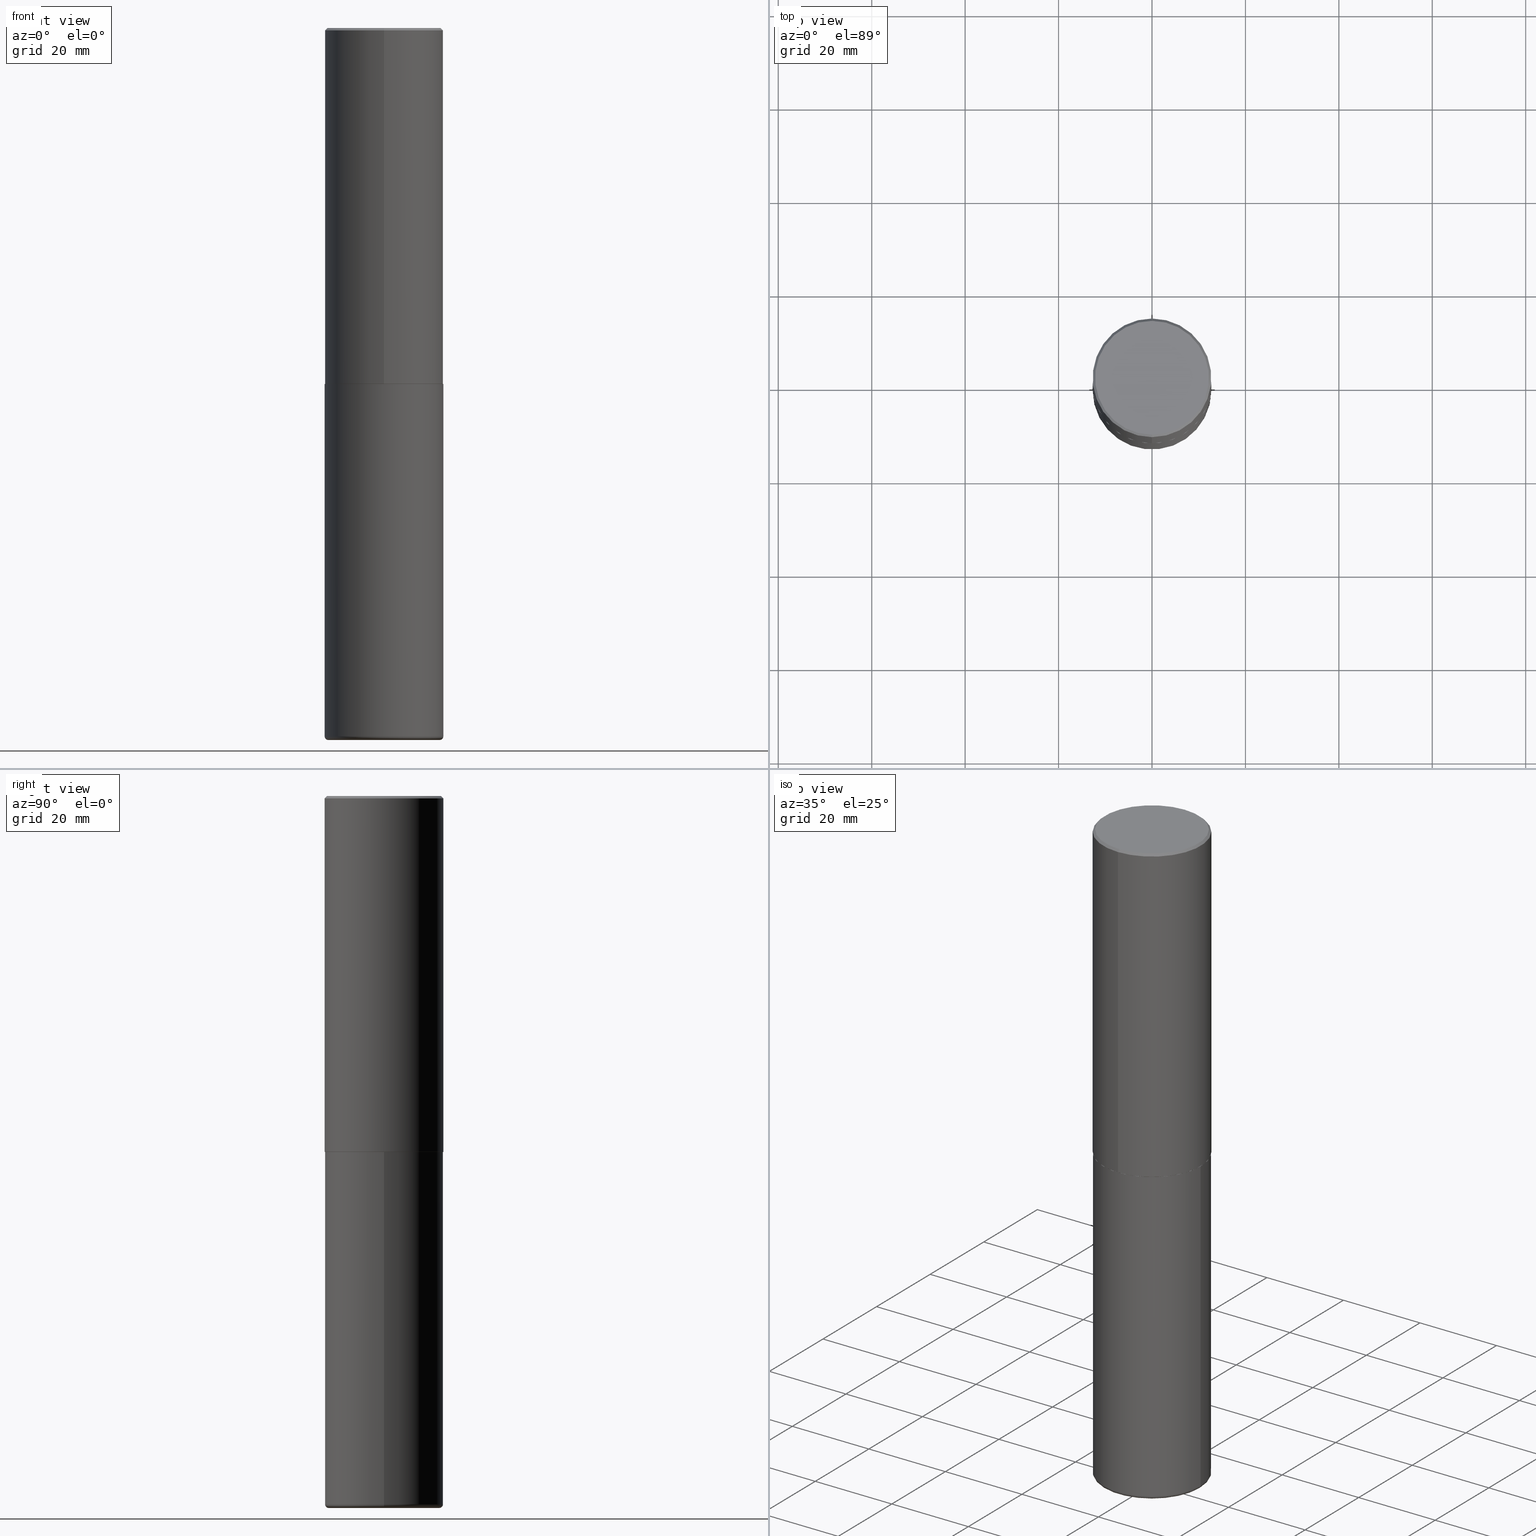
[diagram: canonical four-view strip — front | top / right | iso, engineering-drawing reading convention]
A machine part, canonical four-view strip (front | top / right | iso — engineering-drawing reading convention). The complete STEP part file that produces these views, byte-faithful:
ISO-10303-21;
HEADER;
FILE_DESCRIPTION (( 'STEP AP203' ),
    '1' );
FILE_NAME ('37706.STEP',
    '2024-03-02T08:44:10',
    ( '' ),
    ( '' ),
    'SwSTEP 2.0',
    'SolidWorks 2023',
    '' );
FILE_SCHEMA (( 'CONFIG_CONTROL_DESIGN' ));
ENDSEC;

DATA;
#1 =( CONVERSION_BASED_UNIT ( 'INCH', #369 ) LENGTH_UNIT ( ) NAMED_UNIT ( #200 ) );
#2 = VERTEX_POINT ( 'NONE', #271 ) ;
#3 = PRODUCT_DEFINITION ( 'UNKNOWN', '', #220, #111 ) ;
#4 = CARTESIAN_POINT ( 'NONE',  ( 3.351822085289407153E-15, 0.4799999999999999267, -1.624885063648019971E-15 ) ) ;
#5 = AXIS2_PLACEMENT_3D ( 'NONE', #252, #53, #348 ) ;
#6 = CIRCLE ( 'NONE', #163, 0.4799999999999999267 ) ;
#7 = FACE_OUTER_BOUND ( 'NONE', #229, .T. ) ;
#8 = VERTEX_POINT ( 'NONE', #396 ) ;
#9 = EDGE_CURVE ( 'NONE', #127, #169, #43, .T. ) ;
#10 = ADVANCED_FACE ( 'NONE', ( #120 ), #189, .T. ) ;
#11 = CARTESIAN_POINT ( 'NONE',  ( -0.5000000000000000000, 3.552713678800500929E-15, -2.459467545127452891E-29 ) ) ;
#12 = EDGE_LOOP ( 'NONE', ( #334, #37, #193, #131 ) ) ;
#13 = FACE_OUTER_BOUND ( 'NONE', #93, .T. ) ;
#14 = CARTESIAN_POINT ( 'NONE',  ( 3.491481338843133355E-15, 0.4999999999999999445, -0.02000000000000185310 ) ) ;
#15 = CARTESIAN_POINT ( 'NONE',  ( 1.459944877292526494E-28, -2.084414359289357934E-14, -5.969999999999999751 ) ) ;
#16 = DIRECTION ( 'NONE',  ( 1.000000000000000000, -6.982962677686217012E-15, 0.000000000000000000 ) ) ;
#17 = AXIS2_PLACEMENT_3D ( 'NONE', #15, #361, #104 ) ;
#18 = PERSON_AND_ORGANIZATION ( #270, #389 ) ;
#19 = CARTESIAN_POINT ( 'NONE',  ( 7.334694101099137475E-29, -1.047689615258587837E-14, -3.000000000000000444 ) ) ;
#20 = EDGE_CURVE ( 'NONE', #392, #32, #219, .T. ) ;
#21 = CARTESIAN_POINT ( 'NONE',  ( 0.5000000000000000000, -1.396592535537257129E-14, -3.000000000000000444 ) ) ;
#22 = PERSON_AND_ORGANIZATION ( #270, #389 ) ;
#23 = ADVANCED_BREP_SHAPE_REPRESENTATION ( '37706', ( #358, #359, #418 ), #338 ) ;
#24 = EDGE_CURVE ( 'NONE', #306, #327, #316, .T. ) ;
#25 = APPROVAL_PERSON_ORGANIZATION ( #247, #269, #343 ) ;
#26 = ADVANCED_FACE ( 'NONE', ( #49 ), #110, .T. ) ;
#27 = CC_DESIGN_SECURITY_CLASSIFICATION ( #213, ( #220 ) ) ;
#28 = CC_DESIGN_PERSON_AND_ORGANIZATION_ASSIGNMENT ( #176, #248, ( #220 ) ) ;
#29 = DIRECTION ( 'NONE',  ( -2.444898033699712212E-29, 3.492298717528625990E-15, 1.000000000000000000 ) ) ;
#30 = ADVANCED_FACE ( 'NONE', ( #276 ), #160, .T. ) ;
#31 = CARTESIAN_POINT ( 'NONE',  ( 7.336406418555409790E-29, -1.047444401652943635E-14, -3.000000000000000444 ) ) ;
#32 = VERTEX_POINT ( 'NONE', #21 ) ;
#33 = CIRCLE ( 'NONE', #142, 0.03000000000000077258 ) ;
#34 = LOCAL_TIME ( 3, 44, 10.00000000000000000, #106 ) ;
#35 =( LENGTH_UNIT ( ) NAMED_UNIT ( * ) SI_UNIT ( $, .METRE. ) );
#36 = EDGE_CURVE ( 'NONE', #127, #309, #33, .T. ) ;
#37 = ORIENTED_EDGE ( 'NONE', *, *, #257, .T. ) ;
#38 = LINE ( 'NONE', #155, #92 ) ;
#39 = DIRECTION ( 'NONE',  ( -2.445468806185136877E-29, 3.491481338843145188E-15, 1.000000000000000000 ) ) ;
#40 = VERTEX_POINT ( 'NONE', #171 ) ;
#41 = DIRECTION ( 'NONE',  ( -6.982962677686265922E-15, -1.000000000000000000, 3.284787166730577015E-15 ) ) ;
#42 = APPLICATION_PROTOCOL_DEFINITION ( 'international standard', 'config_control_design', 1994, #294 ) ;
#43 = CIRCLE ( 'NONE', #186, 0.4699999999999999734 ) ;
#44 = CONICAL_SURFACE ( 'NONE', #68, 0.5000000000000000000, 0.7853981633974446153 ) ;
#45 = DIRECTION ( 'NONE',  ( -2.445468806185136597E-29, 3.491481338843145583E-15, 1.000000000000000000 ) ) ;
#46 = ORIENTED_EDGE ( 'NONE', *, *, #87, .F. ) ;
#47 = CARTESIAN_POINT ( 'NONE',  ( 0.4699999999999999734, -2.412613605140612280E-14, -5.969999999999999751 ) ) ;
#48 = ORIENTED_EDGE ( 'NONE', *, *, #61, .T. ) ;
#49 = FACE_OUTER_BOUND ( 'NONE', #228, .T. ) ;
#50 = PERSON_AND_ORGANIZATION_ROLE ( 'design_owner' ) ;
#51 = AXIS2_PLACEMENT_3D ( 'NONE', #310, #158, #204 ) ;
#52 = CALENDAR_DATE ( 2024, 2, 3 ) ;
#53 = DIRECTION ( 'NONE',  ( -2.444898033699712212E-29, 3.492298717528625990E-15, 1.000000000000000000 ) ) ;
#54 = APPROVAL_DATE_TIME ( #405, #331 ) ;
#55 = COORDINATED_UNIVERSAL_TIME_OFFSET ( 5, 0, .BEHIND. ) ;
#56 = DIRECTION ( 'NONE',  ( -6.982962677686265922E-15, -1.000000000000000000, 3.284787166730577015E-15 ) ) ;
#57 = CC_DESIGN_PERSON_AND_ORGANIZATION_ASSIGNMENT ( #18, #349, ( #3 ) ) ;
#58 = DIRECTION ( 'NONE',  ( -6.982962677686265922E-15, -1.000000000000000000, 3.491643216902136408E-15 ) ) ;
#59 = CIRCLE ( 'NONE', #108, 0.4799999999999999267 ) ;
#60 = AXIS2_PLACEMENT_3D ( 'NONE', #19, #353, #56 ) ;
#61 = EDGE_CURVE ( 'NONE', #306, #8, #414, .T. ) ;
#62 = ORIENTED_EDGE ( 'NONE', *, *, #380, .F. ) ;
#63 = AXIS2_PLACEMENT_3D ( 'NONE', #275, #100, #400 ) ;
#64 = ORIENTED_EDGE ( 'NONE', *, *, #9, .F. ) ;
#65 = DIRECTION ( 'NONE',  ( -6.982962677686265922E-15, -1.000000000000000000, 3.284787166730577015E-15 ) ) ;
#66 = EDGE_LOOP ( 'NONE', ( #339, #235 ) ) ;
#67 = ORIENTED_EDGE ( 'NONE', *, *, #206, .F. ) ;
#68 = AXIS2_PLACEMENT_3D ( 'NONE', #199, #134, #239 ) ;
#69 = CARTESIAN_POINT ( 'NONE',  ( 3.552713678800501718E-15, 0.5000000000000001110, -1.746149358764313390E-15 ) ) ;
#70 = ORIENTED_EDGE ( 'NONE', *, *, #221, .F. ) ;
#71 = CARTESIAN_POINT ( 'NONE',  ( 7.336406418555409790E-29, -1.047444401652943635E-14, -3.000000000000000444 ) ) ;
#72 = APPLICATION_CONTEXT ( 'configuration controlled 3d designs of mechanical parts and assemblies' ) ;
#73 = ORIENTED_EDGE ( 'NONE', *, *, #262, .F. ) ;
#74 = CC_DESIGN_PERSON_AND_ORGANIZATION_ASSIGNMENT ( #255, #210, ( #213 ) ) ;
#75 = CARTESIAN_POINT ( 'NONE',  ( -0.5000000000000000000, -1.210658012591100613E-14, -3.000000000000000444 ) ) ;
#76 = ORIENTED_EDGE ( 'NONE', *, *, #372, .F. ) ;
#77 = CARTESIAN_POINT ( 'NONE',  ( -3.484498376165373188E-15, -0.4990000000000104352, -2.999999999999998668 ) ) ;
#78 = AXIS2_PLACEMENT_3D ( 'NONE', #47, #244, #16 ) ;
#79 = DIRECTION ( 'NONE',  ( 5.024295867789263036E-15, 0.7071067811867189912, 0.7071067811863760433 ) ) ;
#80 = EDGE_LOOP ( 'NONE', ( #362, #119, #62, #46 ) ) ;
#81 = CARTESIAN_POINT ( 'NONE',  ( 4.889796067399450837E-31, -6.984597435057287381E-17, -0.02000000000000010797 ) ) ;
#82 = DIRECTION ( 'NONE',  ( 2.438088387897960049E-29, -3.491481338843145188E-15, -1.000000000000000000 ) ) ;
#83 = CC_DESIGN_PERSON_AND_ORGANIZATION_ASSIGNMENT ( #178, #50, ( #159 ) ) ;
#84 = APPROVAL_DATE_TIME ( #292, #269 ) ;
#85 = FACE_OUTER_BOUND ( 'NONE', #80, .T. ) ;
#86 = APPROVAL_DATE_TIME ( #259, #124 ) ;
#87 = EDGE_CURVE ( 'NONE', #136, #32, #112, .T. ) ;
#88 = CARTESIAN_POINT ( 'NONE',  ( 4.889796067399450837E-31, -6.984597435057287381E-17, -0.02000000000000010797 ) ) ;
#89 = DATE_TIME_ROLE ( 'classification_date' ) ;
#90 = VECTOR ( 'NONE', #222, 39.37007874015748143 ) ;
#91 = EDGE_CURVE ( 'NONE', #129, #8, #409, .T. ) ;
#92 = VECTOR ( 'NONE', #149, 39.37007874015748143 ) ;
#93 = EDGE_LOOP ( 'NONE', ( #390, #105 ) ) ;
#94 = CIRCLE ( 'NONE', #146, 0.5000000000000002220 ) ;
#95 = ORIENTED_EDGE ( 'NONE', *, *, #36, .T. ) ;
#96 = TOROIDAL_SURFACE ( 'NONE', #17, 0.4699999999999999734, 0.03000000000000077258 ) ;
#97 = CARTESIAN_POINT ( 'NONE',  ( 3.491481338843133355E-15, 0.4999999999999999445, -0.02000000000000185310 ) ) ;
#98 = EDGE_LOOP ( 'NONE', ( #364, #274, #224, #243 ) ) ;
#99 = EDGE_LOOP ( 'NONE', ( #278, #133, #330, #161 ) ) ;
#100 = DIRECTION ( 'NONE',  ( -2.444898033699712212E-29, 3.492298717528625990E-15, 1.000000000000000000 ) ) ;
#101 = DIRECTION ( 'NONE',  ( 4.937700262164529898E-15, 0.7071067811865424657, -0.7071067811865525687 ) ) ;
#102 = EDGE_LOOP ( 'NONE', ( #198, #185, #399, #386 ) ) ;
#103 = CONICAL_SURFACE ( 'NONE', #187, 0.4989999999999999991, 0.7853981633976873100 ) ;
#104 = DIRECTION ( 'NONE',  ( 1.000000000000000000, -6.982962677686268288E-15, 4.883557194083112901E-29 ) ) ;
#105 = ORIENTED_EDGE ( 'NONE', *, *, #20, .T. ) ;
#106 = COORDINATED_UNIVERSAL_TIME_OFFSET ( 5, 0, .BEHIND. ) ;
#107 = DIRECTION ( 'NONE',  ( 1.000000000000000000, -6.982962677686266711E-15, 4.876176775795935793E-29 ) ) ;
#108 = AXIS2_PLACEMENT_3D ( 'NONE', #403, #29, #416 ) ;
#109 = AXIS2_PLACEMENT_3D ( 'NONE', #4, #333, #398 ) ;
#110 = CYLINDRICAL_SURFACE ( 'NONE', #303, 0.5000000000000001110 ) ;
#111 = DESIGN_CONTEXT ( 'detailed design', #72, 'design' ) ;
#112 = LINE ( 'NONE', #254, #122 ) ;
#113 = SECURITY_CLASSIFICATION_LEVEL ( 'unclassified' ) ;
#114 = CYLINDRICAL_SURFACE ( 'NONE', #231, 0.5000000000000000000 ) ;
#115 = DIRECTION ( 'NONE',  ( 1.000000000000000000, -6.982962677686266711E-15, 0.000000000000000000 ) ) ;
#116 = AXIS2_PLACEMENT_3D ( 'NONE', #179, #323, #138 ) ;
#117 = DIRECTION ( 'NONE',  ( -6.982962677686266711E-15, -1.000000000000000000, 3.278217592397114284E-15 ) ) ;
#118 = APPROVAL_PERSON_ORGANIZATION ( #22, #331, #284 ) ;
#119 = ORIENTED_EDGE ( 'NONE', *, *, #413, .T. ) ;
#120 = FACE_OUTER_BOUND ( 'NONE', #404, .T. ) ;
#121 = CARTESIAN_POINT ( 'NONE',  ( 7.332249203065438921E-29, -1.047340385386834930E-14, -2.999000000000000554 ) ) ;
#122 = VECTOR ( 'NONE', #381, 39.37007874015748143 ) ;
#123 = LOCAL_TIME ( 3, 44, 10.00000000000000000, #317 ) ;
#124 = APPROVAL ( #382, 'UNSPECIFIED' ) ;
#125 = ORIENTED_EDGE ( 'NONE', *, *, #140, .F. ) ;
#126 = CARTESIAN_POINT ( 'NONE',  ( 3.552713678800539584E-15, 0.4999999999999898970, -2.999000000000001886 ) ) ;
#127 = VERTEX_POINT ( 'NONE', #313 ) ;
#128 = CARTESIAN_POINT ( 'NONE',  ( 1.459944877292526494E-28, -2.084414359289357934E-14, -5.969999999999999751 ) ) ;
#129 = VERTEX_POINT ( 'NONE', #14 ) ;
#130 = CIRCLE ( 'NONE', #377, 0.5000000000000000000 ) ;
#131 = ORIENTED_EDGE ( 'NONE', *, *, #154, .F. ) ;
#132 = LINE ( 'NONE', #97, #304 ) ;
#133 = ORIENTED_EDGE ( 'NONE', *, *, #391, .T. ) ;
#134 = DIRECTION ( 'NONE',  ( 2.444898033699712212E-29, -3.492298717528625990E-15, -1.000000000000000000 ) ) ;
#135 = CARTESIAN_POINT ( 'NONE',  ( 0.5000000000000003331, -2.433562493173670954E-14, -5.969999999999999751 ) ) ;
#136 = VERTEX_POINT ( 'NONE', #135 ) ;
#137 = LOCAL_TIME ( 3, 44, 10.00000000000000000, #55 ) ;
#138 = DIRECTION ( 'NONE',  ( 6.982962677686265922E-15, 1.000000000000000000, -3.491643216902136408E-15 ) ) ;
#139 = COORDINATED_UNIVERSAL_TIME_OFFSET ( 5, 0, .BEHIND. ) ;
#140 = EDGE_CURVE ( 'NONE', #2, #40, #59, .T. ) ;
#141 = PERSON_AND_ORGANIZATION_ROLE ( 'creator' ) ;
#142 = AXIS2_PLACEMENT_3D ( 'NONE', #373, #283, #289 ) ;
#143 = AXIS2_PLACEMENT_3D ( 'NONE', #412, #352, #321 ) ;
#144 = DIRECTION ( 'NONE',  ( -2.444898033699712212E-29, 3.492298717528625990E-15, 1.000000000000000000 ) ) ;
#145 = EDGE_CURVE ( 'NONE', #208, #306, #326, .T. ) ;
#146 = AXIS2_PLACEMENT_3D ( 'NONE', #121, #144, #117 ) ;
#147 = AXIS2_PLACEMENT_3D ( 'NONE', #395, #337, #196 ) ;
#148 = DIRECTION ( 'NONE',  ( 1.000000000000000000, -6.982962677686262766E-15, 0.000000000000000000 ) ) ;
#149 = DIRECTION ( 'NONE',  ( -4.851104656540946131E-15, -0.7071067811865473507, -0.7071067811865476838 ) ) ;
#150 = FACE_OUTER_BOUND ( 'NONE', #12, .T. ) ;
#151 = CARTESIAN_POINT ( 'NONE',  ( -0.5000000000000003331, -1.729142991409307210E-14, -5.969999999999999751 ) ) ;
#152 = CARTESIAN_POINT ( 'NONE',  ( -2.514251026725007597E-45, 3.591362713352002573E-31, 1.028366415314403880E-16 ) ) ;
#153 = ORIENTED_EDGE ( 'NONE', *, *, #91, .F. ) ;
#154 = EDGE_CURVE ( 'NONE', #327, #306, #94, .T. ) ;
#155 = CARTESIAN_POINT ( 'NONE',  ( -3.430248998885764992E-15, -0.5000000000000001110, -0.01999999999999835937 ) ) ;
#156 =( NAMED_UNIT ( * ) SI_UNIT ( $, .STERADIAN. ) SOLID_ANGLE_UNIT ( ) );
#157 = ORIENTED_EDGE ( 'NONE', *, *, #354, .F. ) ;
#158 = DIRECTION ( 'NONE',  ( -2.444898033699711371E-29, 3.492298717528626385E-15, 1.000000000000000000 ) ) ;
#159 = PRODUCT ( '37706', '37706', '', ( #286 ) ) ;
#160 = CONICAL_SURFACE ( 'NONE', #116, 0.5000000000000000000, 0.7853981633974446153 ) ;
#161 = ORIENTED_EDGE ( 'NONE', *, *, #145, .F. ) ;
#162 = DIRECTION ( 'NONE',  ( -6.982962677686265922E-15, -1.000000000000000000, 3.492298717528625990E-15 ) ) ;
#163 = AXIS2_PLACEMENT_3D ( 'NONE', #152, #245, #241 ) ;
#164 = DIRECTION ( 'NONE',  ( -2.444898033699711931E-29, 3.492298717528626385E-15, 1.000000000000000000 ) ) ;
#165 = ORIENTED_EDGE ( 'NONE', *, *, #258, .F. ) ;
#166 = CARTESIAN_POINT ( 'NONE',  ( 3.549160965121773789E-15, 0.4989999999999895630, -3.000000000000001776 ) ) ;
#167 = ADVANCED_FACE ( 'NONE', ( #150 ), #266, .T. ) ;
#168 = EDGE_CURVE ( 'NONE', #40, #8, #38, .T. ) ;
#169 = VERTEX_POINT ( 'NONE', #170 ) ;
#170 = CARTESIAN_POINT ( 'NONE',  ( 0.4699999999999999734, -2.423088049157142248E-14, -6.000000000000001776 ) ) ;
#171 = CARTESIAN_POINT ( 'NONE',  ( -3.361644018908049661E-15, -0.4799999999999999267, 1.779140025945180744E-15 ) ) ;
#172 = PERSON_AND_ORGANIZATION ( #270, #389 ) ;
#173 = CARTESIAN_POINT ( 'NONE',  ( 1.459944877292526494E-28, -2.084414359289357934E-14, -5.969999999999999751 ) ) ;
#174 = LOCAL_TIME ( 3, 44, 10.00000000000000000, #139 ) ;
#175 = CARTESIAN_POINT ( 'NONE',  ( 0.000000000000000000, 0.000000000000000000, 0.000000000000000000 ) ) ;
#176 = PERSON_AND_ORGANIZATION ( #270, #389 ) ;
#177 = CC_DESIGN_PERSON_AND_ORGANIZATION_ASSIGNMENT ( #415, #141, ( #220 ) ) ;
#178 = PERSON_AND_ORGANIZATION ( #270, #389 ) ;
#179 = CARTESIAN_POINT ( 'NONE',  ( 4.889796067399450837E-31, -6.984597435057287381E-17, -0.02000000000000010797 ) ) ;
#180 = CALENDAR_DATE ( 2024, 2, 3 ) ;
#181 = CLOSED_SHELL ( 'NONE', ( #240, #26, #218, #30, #197, #167, #251, #406 ) ) ;
#182 = CIRCLE ( 'NONE', #147, 0.5000000000000000000 ) ;
#183 = CARTESIAN_POINT ( 'NONE',  ( 0.000000000000000000, 0.000000000000000000, 0.000000000000000000 ) ) ;
#184 = CYLINDRICAL_SURFACE ( 'NONE', #143, 0.5000000000000000000 ) ;
#185 = ORIENTED_EDGE ( 'NONE', *, *, #312, .T. ) ;
#186 = AXIS2_PLACEMENT_3D ( 'NONE', #217, #293, #148 ) ;
#187 = AXIS2_PLACEMENT_3D ( 'NONE', #279, #365, #41 ) ;
#188 = PRODUCT_RELATED_PRODUCT_CATEGORY ( 'detail', '', ( #159 ) ) ;
#189 = PLANE ( 'NONE',  #242 ) ;
#190 = ORIENTED_EDGE ( 'NONE', *, *, #257, .F. ) ;
#191 = CARTESIAN_POINT ( 'NONE',  ( 1.459944877292526494E-28, -2.084414359289357934E-14, -5.969999999999999751 ) ) ;
#192 = AXIS2_PLACEMENT_3D ( 'NONE', #191, #45, #263 ) ;
#193 = ORIENTED_EDGE ( 'NONE', *, *, #145, .T. ) ;
#194 = FACE_OUTER_BOUND ( 'NONE', #66, .T. ) ;
#195 = ORIENTED_EDGE ( 'NONE', *, *, #168, .F. ) ;
#196 = DIRECTION ( 'NONE',  ( 1.000000000000000000, -6.982962677686266711E-15, 0.000000000000000000 ) ) ;
#197 = ADVANCED_FACE ( 'NONE', ( #363 ), #272, .T. ) ;
#198 = ORIENTED_EDGE ( 'NONE', *, *, #413, .F. ) ;
#199 = CARTESIAN_POINT ( 'NONE',  ( 4.889796067399450837E-31, -6.984597435057287381E-17, -0.02000000000000010797 ) ) ;
#200 = DIMENSIONAL_EXPONENTS ( 1.000000000000000000, 0.000000000000000000, 0.000000000000000000, 0.000000000000000000, 0.000000000000000000, 0.000000000000000000, 0.000000000000000000 ) ;
#201 = DIRECTION ( 'NONE',  ( -2.445468806185136597E-29, 3.491481338843145583E-15, 1.000000000000000000 ) ) ;
#202 = AXIS2_PLACEMENT_3D ( 'NONE', #336, #340, #162 ) ;
#203 = ORIENTED_EDGE ( 'NONE', *, *, #354, .T. ) ;
#204 = DIRECTION ( 'NONE',  ( -6.982962677686265922E-15, -1.000000000000000000, 3.492298717528626385E-15 ) ) ;
#205 = CC_DESIGN_APPROVAL ( #269, ( #213 ) ) ;
#206 = EDGE_CURVE ( 'NONE', #169, #136, #388, .T. ) ;
#207 = LINE ( 'NONE', #69, #250 ) ;
#208 = VERTEX_POINT ( 'NONE', #77 ) ;
#209 = DIRECTION ( 'NONE',  ( -6.982962677686265922E-15, -1.000000000000000000, 3.491643216902136408E-15 ) ) ;
#210 = PERSON_AND_ORGANIZATION_ROLE ( 'classification_officer' ) ;
#211 = DIRECTION ( 'NONE',  ( 1.000000000000000000, -6.982962677686262766E-15, 0.000000000000000000 ) ) ;
#212 = SHAPE_DEFINITION_REPRESENTATION ( #311, #23 ) ;
#213 = SECURITY_CLASSIFICATION ( '', '', #113 ) ;
#214 = DATE_AND_TIME ( #215, #34 ) ;
#215 = CALENDAR_DATE ( 2024, 2, 3 ) ;
#216 = DIRECTION ( 'NONE',  ( -2.444898033699712212E-29, 3.492298717528625990E-15, 1.000000000000000000 ) ) ;
#217 = CARTESIAN_POINT ( 'NONE',  ( 1.467281283711082406E-28, -2.094888803305887902E-14, -6.000000000000001776 ) ) ;
#218 = ADVANCED_FACE ( 'NONE', ( #265 ), #44, .T. ) ;
#219 = CIRCLE ( 'NONE', #345, 0.5000000000000000000 ) ;
#220 = PRODUCT_DEFINITION_FORMATION_WITH_SPECIFIED_SOURCE ( 'ANY', '', #159, .NOT_KNOWN. ) ;
#221 = EDGE_CURVE ( 'NONE', #136, #309, #368, .T. ) ;
#222 = DIRECTION ( 'NONE',  ( -4.937700262165728178E-15, -0.7071067811867141062, 0.7071067811863809283 ) ) ;
#223 = DIRECTION ( 'NONE',  ( 2.438088387897960049E-29, -3.491481338843145188E-15, -1.000000000000000000 ) ) ;
#224 = ORIENTED_EDGE ( 'NONE', *, *, #206, .T. ) ;
#225 = CARTESIAN_POINT ( 'NONE',  ( 4.931676200070994304E-29, -3.489875012836576194E-14, -6.000000000000001776 ) ) ;
#226 = ORIENTED_EDGE ( 'NONE', *, *, #296, .F. ) ;
#227 = CIRCLE ( 'NONE', #328, 0.4699999999999999734 ) ;
#228 = EDGE_LOOP ( 'NONE', ( #301, #370, #73, #355 ) ) ;
#229 = EDGE_LOOP ( 'NONE', ( #394, #95, #70, #67 ) ) ;
#230 = ADVANCED_FACE ( 'NONE', ( #13 ), #236, .F. ) ;
#231 = AXIS2_PLACEMENT_3D ( 'NONE', #285, #408, #107 ) ;
#232 =( NAMED_UNIT ( * ) PLANE_ANGLE_UNIT ( ) SI_UNIT ( $, .RADIAN. ) );
#233 = VERTEX_POINT ( 'NONE', #166 ) ;
#234 = DIRECTION ( 'NONE',  ( 1.000000000000000000, -6.982962677686263555E-15, 0.000000000000000000 ) ) ;
#235 = ORIENTED_EDGE ( 'NONE', *, *, #372, .T. ) ;
#236 = PLANE ( 'NONE',  #356 ) ;
#237 = LINE ( 'NONE', #366, #347 ) ;
#238 = ORIENTED_EDGE ( 'NONE', *, *, #91, .T. ) ;
#239 = DIRECTION ( 'NONE',  ( 6.982962677686265922E-15, 1.000000000000000000, -3.491643216902136408E-15 ) ) ;
#240 = ADVANCED_FACE ( 'NONE', ( #302 ), #103, .T. ) ;
#241 = DIRECTION ( 'NONE',  ( -6.982962677686265922E-15, -1.000000000000000000, 3.492298717528625990E-15 ) ) ;
#242 = AXIS2_PLACEMENT_3D ( 'NONE', #225, #223, #329 ) ;
#243 = ORIENTED_EDGE ( 'NONE', *, *, #312, .F. ) ;
#244 = DIRECTION ( 'NONE',  ( -6.982962677686266711E-15, -1.000000000000000000, 3.491481338843145583E-15 ) ) ;
#245 = DIRECTION ( 'NONE',  ( -2.444898033699712212E-29, 3.492298717528625990E-15, 1.000000000000000000 ) ) ;
#246 = CARTESIAN_POINT ( 'NONE',  ( 1.467281283711082406E-28, -2.094888803305887902E-14, -6.000000000000001776 ) ) ;
#247 = PERSON_AND_ORGANIZATION ( #270, #389 ) ;
#248 = PERSON_AND_ORGANIZATION_ROLE ( 'design_supplier' ) ;
#249 = AXIS2_PLACEMENT_3D ( 'NONE', #261, #387, #65 ) ;
#250 = VECTOR ( 'NONE', #164, 39.37007874015748143 ) ;
#251 = ADVANCED_FACE ( 'NONE', ( #307 ), #397, .F. ) ;
#252 = CARTESIAN_POINT ( 'NONE',  ( 7.332249203065438921E-29, -1.047340385386834930E-14, -2.999000000000000554 ) ) ;
#253 = CALENDAR_DATE ( 2024, 2, 3 ) ;
#254 = CARTESIAN_POINT ( 'NONE',  ( 0.5000000000000000000, -3.491481338843133355E-15, 2.438088387897967896E-29 ) ) ;
#255 = PERSON_AND_ORGANIZATION ( #270, #389 ) ;
#256 = FACE_OUTER_BOUND ( 'NONE', #98, .T. ) ;
#257 = EDGE_CURVE ( 'NONE', #233, #208, #325, .T. ) ;
#258 = EDGE_CURVE ( 'NONE', #169, #127, #227, .T. ) ;
#259 = DATE_AND_TIME ( #52, #123 ) ;
#260 = CC_DESIGN_APPROVAL ( #124, ( #3 ) ) ;
#261 = CARTESIAN_POINT ( 'NONE',  ( 7.334694101099137475E-29, -1.047689615258587837E-14, -3.000000000000000444 ) ) ;
#262 = EDGE_CURVE ( 'NONE', #8, #129, #130, .T. ) ;
#263 = DIRECTION ( 'NONE',  ( 1.000000000000000000, -6.982962677686268288E-15, 4.883557194083112901E-29 ) ) ;
#264 = EDGE_LOOP ( 'NONE', ( #226, #190 ) ) ;
#265 = FACE_OUTER_BOUND ( 'NONE', #357, .T. ) ;
#266 = CONICAL_SURFACE ( 'NONE', #249, 0.4989999999999999991, 0.7853981633976873100 ) ;
#267 = VECTOR ( 'NONE', #39, 39.37007874015748143 ) ;
#268 = ORIENTED_EDGE ( 'NONE', *, *, #154, .T. ) ;
#269 = APPROVAL ( #351, 'UNSPECIFIED' ) ;
#270 = PERSON ( 'UNSPECIFIED', 'UNSPECIFIED', 'UNSPECIFIED', ('UNSPECIFIED'), ('UNSPECIFIED'), ('UNSPECIFIED') ) ;
#271 = CARTESIAN_POINT ( 'NONE',  ( 3.421651712066270057E-15, 0.4799999999999999267, -1.573466742882299844E-15 ) ) ;
#272 = CYLINDRICAL_SURFACE ( 'NONE', #202, 0.5000000000000001110 ) ;
#273 = PLANE ( 'NONE',  #109 ) ;
#274 = ORIENTED_EDGE ( 'NONE', *, *, #9, .T. ) ;
#275 = CARTESIAN_POINT ( 'NONE',  ( 7.334694101099137475E-29, -1.047689615258587837E-14, -3.000000000000000444 ) ) ;
#276 = FACE_OUTER_BOUND ( 'NONE', #335, .T. ) ;
#277 = VECTOR ( 'NONE', #280, 39.37007874015748143 ) ;
#278 = ORIENTED_EDGE ( 'NONE', *, *, #296, .T. ) ;
#279 = CARTESIAN_POINT ( 'NONE',  ( 7.334694101099137475E-29, -1.047689615258587837E-14, -3.000000000000000444 ) ) ;
#280 = DIRECTION ( 'NONE',  ( -2.444898033699711931E-29, 3.492298717528626385E-15, 1.000000000000000000 ) ) ;
#281 = CALENDAR_DATE ( 2024, 2, 3 ) ;
#282 = UNCERTAINTY_MEASURE_WITH_UNIT (LENGTH_MEASURE( 1.000000000000000082E-05 ), #1, 'distance_accuracy_value', 'NONE');
#283 = DIRECTION ( 'NONE',  ( 7.105427357601001859E-15, 1.000000000000000000, -3.491481338843145583E-15 ) ) ;
#284 = APPROVAL_ROLE ( '' ) ;
#285 = CARTESIAN_POINT ( 'NONE',  ( 0.000000000000000000, 0.000000000000000000, 0.000000000000000000 ) ) ;
#286 = MECHANICAL_CONTEXT ( 'NONE', #294, 'mechanical' ) ;
#287 = CIRCLE ( 'NONE', #319, 0.4999999999999999445 ) ;
#288 = ADVANCED_FACE ( 'NONE', ( #375 ), #184, .T. ) ;
#289 = DIRECTION ( 'NONE',  ( -1.000000000000000000, 7.105427357601001859E-15, 0.000000000000000000 ) ) ;
#290 = DIRECTION ( 'NONE',  ( 0.000000000000000000, 0.000000000000000000, 1.000000000000000000 ) ) ;
#291 = CARTESIAN_POINT ( 'NONE',  ( -3.491481338843061569E-15, -0.5000000000000107692, -2.998999999999998778 ) ) ;
#292 = DATE_AND_TIME ( #180, #137 ) ;
#293 = DIRECTION ( 'NONE',  ( -2.445468806185136597E-29, 3.491481338843145583E-15, 1.000000000000000000 ) ) ;
#294 = APPLICATION_CONTEXT ( 'configuration controlled 3d designs of mechanical parts and assemblies' ) ;
#295 = AXIS2_PLACEMENT_3D ( 'NONE', #88, #216, #58 ) ;
#296 = EDGE_CURVE ( 'NONE', #208, #233, #402, .T. ) ;
#297 = ADVANCED_FACE ( 'NONE', ( #85 ), #114, .T. ) ;
#298 = CARTESIAN_POINT ( 'NONE',  ( -3.484498376165373188E-15, -0.4990000000000104352, -2.999999999999998668 ) ) ;
#299 = DIRECTION ( 'NONE',  ( -2.445468806185136597E-29, 3.491481338843145583E-15, 1.000000000000000000 ) ) ;
#300 = ORIENTED_EDGE ( 'NONE', *, *, #320, .F. ) ;
#301 = ORIENTED_EDGE ( 'NONE', *, *, #24, .T. ) ;
#302 = FACE_OUTER_BOUND ( 'NONE', #99, .T. ) ;
#303 = AXIS2_PLACEMENT_3D ( 'NONE', #175, #378, #350 ) ;
#304 = VECTOR ( 'NONE', #101, 39.37007874015748143 ) ;
#305 = DIRECTION ( 'NONE',  ( 1.000000000000000000, -6.982962677686263555E-15, 0.000000000000000000 ) ) ;
#306 = VERTEX_POINT ( 'NONE', #291 ) ;
#307 = FACE_OUTER_BOUND ( 'NONE', #264, .T. ) ;
#308 = ADVANCED_FACE ( 'NONE', ( #256 ), #96, .T. ) ;
#309 = VERTEX_POINT ( 'NONE', #151 ) ;
#310 = CARTESIAN_POINT ( 'NONE',  ( 7.334694101099137475E-29, -1.047689615258587837E-14, -3.000000000000000444 ) ) ;
#311 = PRODUCT_DEFINITION_SHAPE ( 'NONE', 'NONE',  #3 ) ;
#312 = EDGE_CURVE ( 'NONE', #309, #136, #287, .T. ) ;
#313 = CARTESIAN_POINT ( 'NONE',  ( -0.4699999999999999734, -1.745038354453973785E-14, -6.000000000000001776 ) ) ;
#314 = ORIENTED_EDGE ( 'NONE', *, *, #168, .T. ) ;
#315 = DIRECTION ( 'NONE',  ( -1.000000000000000000, 6.982962677686265922E-15, -4.876176775795935793E-29 ) ) ;
#316 = CIRCLE ( 'NONE', #5, 0.5000000000000002220 ) ;
#317 = COORDINATED_UNIVERSAL_TIME_OFFSET ( 5, 0, .BEHIND. ) ;
#318 = DIRECTION ( 'NONE',  ( -2.444898033699712212E-29, 3.492298717528625990E-15, 1.000000000000000000 ) ) ;
#319 = AXIS2_PLACEMENT_3D ( 'NONE', #128, #201, #305 ) ;
#320 = EDGE_CURVE ( 'NONE', #327, #129, #207, .T. ) ;
#321 = DIRECTION ( 'NONE',  ( 1.000000000000000000, -6.982962677686266711E-15, 4.876176775795935793E-29 ) ) ;
#322 = DATE_TIME_ROLE ( 'creation_date' ) ;
#323 = DIRECTION ( 'NONE',  ( 2.444898033699712212E-29, -3.492298717528625990E-15, -1.000000000000000000 ) ) ;
#324 = APPROVAL_STATUS ( 'not_yet_approved' ) ;
#325 = CIRCLE ( 'NONE', #63, 0.4989999999999999991 ) ;
#326 = LINE ( 'NONE', #298, #90 ) ;
#327 = VERTEX_POINT ( 'NONE', #126 ) ;
#328 = AXIS2_PLACEMENT_3D ( 'NONE', #246, #371, #211 ) ;
#329 = DIRECTION ( 'NONE',  ( -1.000000000000000000, 6.982962677686265922E-15, -4.876176775795935793E-29 ) ) ;
#330 = ORIENTED_EDGE ( 'NONE', *, *, #24, .F. ) ;
#331 = APPROVAL ( #324, 'UNSPECIFIED' ) ;
#332 = APPROVAL_PERSON_ORGANIZATION ( #172, #124, #346 ) ;
#333 = DIRECTION ( 'NONE',  ( 2.444898033699711371E-29, -3.492298717528626385E-15, -1.000000000000000000 ) ) ;
#334 = ORIENTED_EDGE ( 'NONE', *, *, #391, .F. ) ;
#335 = EDGE_LOOP ( 'NONE', ( #195, #125, #203, #238 ) ) ;
#336 = CARTESIAN_POINT ( 'NONE',  ( 0.000000000000000000, 0.000000000000000000, 0.000000000000000000 ) ) ;
#337 = DIRECTION ( 'NONE',  ( -2.445468806185136597E-29, 3.491481338843145583E-15, 1.000000000000000000 ) ) ;
#338 =( GEOMETRIC_REPRESENTATION_CONTEXT ( 3 ) GLOBAL_UNCERTAINTY_ASSIGNED_CONTEXT ( ( #282 ) ) GLOBAL_UNIT_ASSIGNED_CONTEXT ( ( #1, #232, #156 ) ) REPRESENTATION_CONTEXT ( 'NONE', 'WORKASPACE' ) );
#339 = ORIENTED_EDGE ( 'NONE', *, *, #140, .T. ) ;
#340 = DIRECTION ( 'NONE',  ( -2.444898033699712212E-29, 3.492298717528625990E-15, 1.000000000000000000 ) ) ;
#341 = ORIENTED_EDGE ( 'NONE', *, *, #262, .T. ) ;
#342 = CARTESIAN_POINT ( 'NONE',  ( -3.491481338843133750E-15, -0.5000000000000001110, 1.746149358764313390E-15 ) ) ;
#343 = APPROVAL_ROLE ( '' ) ;
#344 = DIRECTION ( 'NONE',  ( -2.445468806185136597E-29, 3.491481338843145583E-15, 1.000000000000000000 ) ) ;
#345 = AXIS2_PLACEMENT_3D ( 'NONE', #31, #299, #115 ) ;
#346 = APPROVAL_ROLE ( '' ) ;
#347 = VECTOR ( 'NONE', #79, 39.37007874015748143 ) ;
#348 = DIRECTION ( 'NONE',  ( -6.982962677686266711E-15, -1.000000000000000000, 3.278217592397114284E-15 ) ) ;
#349 = PERSON_AND_ORGANIZATION_ROLE ( 'creator' ) ;
#350 = DIRECTION ( 'NONE',  ( -6.982962677686265922E-15, -1.000000000000000000, 3.492298717528625990E-15 ) ) ;
#351 = APPROVAL_STATUS ( 'not_yet_approved' ) ;
#352 = DIRECTION ( 'NONE',  ( -2.445468806185136597E-29, 3.491481338843145583E-15, 1.000000000000000000 ) ) ;
#353 = DIRECTION ( 'NONE',  ( -2.444898033699712212E-29, 3.492298717528625990E-15, 1.000000000000000000 ) ) ;
#354 = EDGE_CURVE ( 'NONE', #2, #129, #132, .T. ) ;
#355 = ORIENTED_EDGE ( 'NONE', *, *, #61, .F. ) ;
#356 = AXIS2_PLACEMENT_3D ( 'NONE', #71, #82, #315 ) ;
#357 = EDGE_LOOP ( 'NONE', ( #76, #314, #341, #157 ) ) ;
#358 = MANIFOLD_SOLID_BREP ( 'Body-Move/Copy2[1]', #383 ) ;
#359 = MANIFOLD_SOLID_BREP ( 'Body-Move/Copy2[2]', #181 ) ;
#360 = CC_DESIGN_APPROVAL ( #331, ( #220 ) ) ;
#361 = DIRECTION ( 'NONE',  ( -2.445468806185136597E-29, 3.491481338843145583E-15, 1.000000000000000000 ) ) ;
#362 = ORIENTED_EDGE ( 'NONE', *, *, #221, .T. ) ;
#363 = FACE_OUTER_BOUND ( 'NONE', #367, .T. ) ;
#364 = ORIENTED_EDGE ( 'NONE', *, *, #36, .F. ) ;
#365 = DIRECTION ( 'NONE',  ( -2.444898033699712212E-29, 3.492298717528625990E-15, 1.000000000000000000 ) ) ;
#366 = CARTESIAN_POINT ( 'NONE',  ( 3.545608251442972496E-15, 0.4989999999999895630, -3.000000000000001776 ) ) ;
#367 = EDGE_LOOP ( 'NONE', ( #300, #268, #48, #153 ) ) ;
#368 = CIRCLE ( 'NONE', #411, 0.4999999999999999445 ) ;
#369 = LENGTH_MEASURE_WITH_UNIT ( LENGTH_MEASURE( 0.02539999999999999897 ), #35 );
#370 = ORIENTED_EDGE ( 'NONE', *, *, #320, .T. ) ;
#371 = DIRECTION ( 'NONE',  ( -2.445468806185136597E-29, 3.491481338843145583E-15, 1.000000000000000000 ) ) ;
#372 = EDGE_CURVE ( 'NONE', #40, #2, #6, .T. ) ;
#373 = CARTESIAN_POINT ( 'NONE',  ( -0.4699999999999999734, -1.750459273482110708E-14, -5.969999999999999751 ) ) ;
#374 = LINE ( 'NONE', #11, #267 ) ;
#375 = FACE_OUTER_BOUND ( 'NONE', #102, .T. ) ;
#376 = DIRECTION ( 'NONE',  ( 1.000000000000000000, 0.000000000000000000, 0.000000000000000000 ) ) ;
#377 = AXIS2_PLACEMENT_3D ( 'NONE', #81, #318, #209 ) ;
#378 = DIRECTION ( 'NONE',  ( -2.444898033699712212E-29, 3.492298717528625990E-15, 1.000000000000000000 ) ) ;
#379 = DATE_AND_TIME ( #253, #174 ) ;
#380 = EDGE_CURVE ( 'NONE', #32, #392, #182, .T. ) ;
#381 = DIRECTION ( 'NONE',  ( -2.445468806185136877E-29, 3.491481338843145188E-15, 1.000000000000000000 ) ) ;
#382 = APPROVAL_STATUS ( 'not_yet_approved' ) ;
#383 = CLOSED_SHELL ( 'NONE', ( #297, #385, #230, #288, #308, #10 ) ) ;
#384 = TOROIDAL_SURFACE ( 'NONE', #192, 0.4699999999999999734, 0.03000000000000077258 ) ;
#385 = ADVANCED_FACE ( 'NONE', ( #7 ), #384, .T. ) ;
#386 = ORIENTED_EDGE ( 'NONE', *, *, #20, .F. ) ;
#387 = DIRECTION ( 'NONE',  ( -2.444898033699712212E-29, 3.492298717528625990E-15, 1.000000000000000000 ) ) ;
#388 = CIRCLE ( 'NONE', #78, 0.03000000000000077258 ) ;
#389 = ORGANIZATION ( 'UNSPECIFIED', 'UNSPECIFIED', '' ) ;
#390 = ORIENTED_EDGE ( 'NONE', *, *, #380, .T. ) ;
#391 = EDGE_CURVE ( 'NONE', #233, #327, #237, .T. ) ;
#392 = VERTEX_POINT ( 'NONE', #75 ) ;
#393 = LOCAL_TIME ( 3, 44, 10.00000000000000000, #407 ) ;
#394 = ORIENTED_EDGE ( 'NONE', *, *, #258, .T. ) ;
#395 = CARTESIAN_POINT ( 'NONE',  ( 7.336406418555409790E-29, -1.047444401652943635E-14, -3.000000000000000444 ) ) ;
#396 = CARTESIAN_POINT ( 'NONE',  ( -3.430248998885764992E-15, -0.5000000000000001110, -0.01999999999999835937 ) ) ;
#397 = PLANE ( 'NONE',  #51 ) ;
#398 = DIRECTION ( 'NONE',  ( 6.982962677686265922E-15, 1.000000000000000000, -3.492298717528626385E-15 ) ) ;
#399 = ORIENTED_EDGE ( 'NONE', *, *, #87, .T. ) ;
#400 = DIRECTION ( 'NONE',  ( -6.982962677686265922E-15, -1.000000000000000000, 3.284787166730577015E-15 ) ) ;
#401 = CC_DESIGN_DATE_AND_TIME_ASSIGNMENT ( #379, #322, ( #3 ) ) ;
#402 = CIRCLE ( 'NONE', #60, 0.4989999999999999991 ) ;
#403 = CARTESIAN_POINT ( 'NONE',  ( -2.514251026725007597E-45, 3.591362713352002573E-31, 1.028366415314403880E-16 ) ) ;
#404 = EDGE_LOOP ( 'NONE', ( #165, #64 ) ) ;
#405 = DATE_AND_TIME ( #281, #393 ) ;
#406 = ADVANCED_FACE ( 'NONE', ( #194 ), #273, .F. ) ;
#407 = COORDINATED_UNIVERSAL_TIME_OFFSET ( 5, 0, .BEHIND. ) ;
#408 = DIRECTION ( 'NONE',  ( -2.445468806185136597E-29, 3.491481338843145583E-15, 1.000000000000000000 ) ) ;
#409 = CIRCLE ( 'NONE', #295, 0.5000000000000000000 ) ;
#410 = APPLICATION_PROTOCOL_DEFINITION ( 'international standard', 'config_control_design', 1994, #72 ) ;
#411 = AXIS2_PLACEMENT_3D ( 'NONE', #173, #344, #234 ) ;
#412 = CARTESIAN_POINT ( 'NONE',  ( 0.000000000000000000, 0.000000000000000000, 0.000000000000000000 ) ) ;
#413 = EDGE_CURVE ( 'NONE', #309, #392, #374, .T. ) ;
#414 = LINE ( 'NONE', #342, #277 ) ;
#415 = PERSON_AND_ORGANIZATION ( #270, #389 ) ;
#416 = DIRECTION ( 'NONE',  ( -6.982962677686265922E-15, -1.000000000000000000, 3.492298717528625990E-15 ) ) ;
#417 = CC_DESIGN_DATE_AND_TIME_ASSIGNMENT ( #214, #89, ( #213 ) ) ;
#418 = AXIS2_PLACEMENT_3D ( 'NONE', #183, #290, #376 ) ;
ENDSEC;
END-ISO-10303-21;
